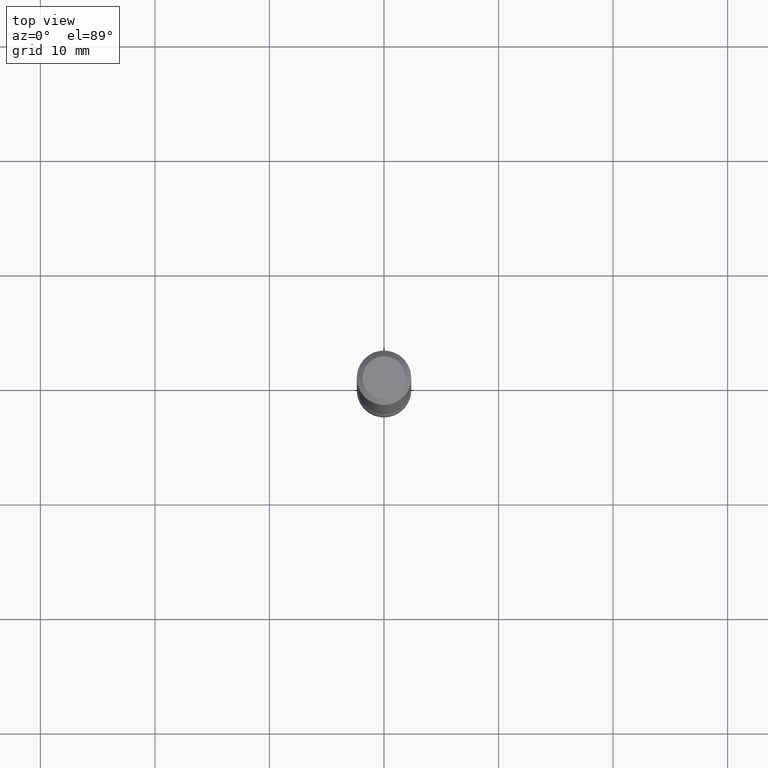
[diagram: clean part render]
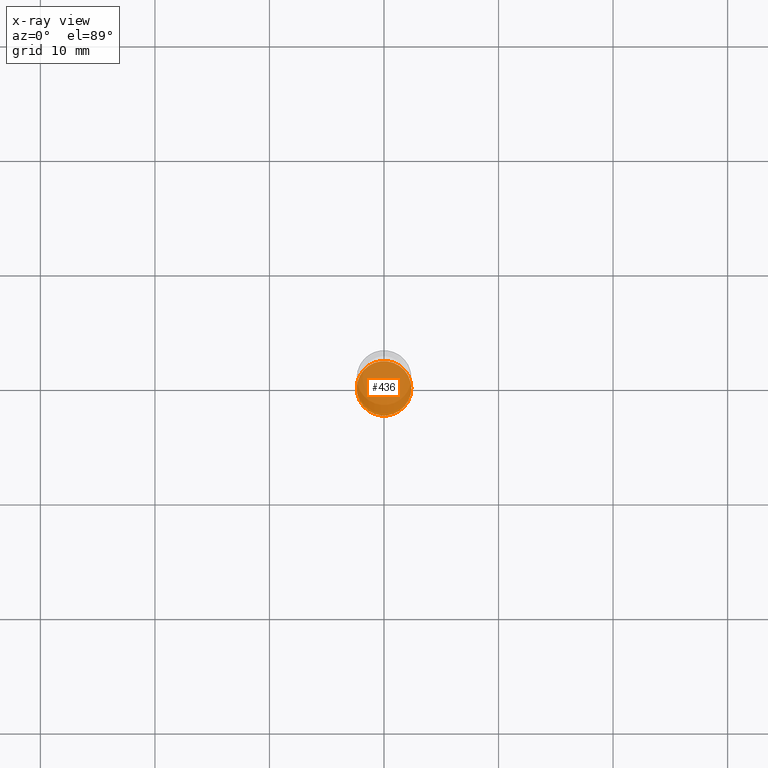
[diagram: x-ray — body ghosted, one internal face saturated and labeled with its STEP entity id]
A machine part, top view, then the same camera in x-ray: the body is ghosted and one INTERNAL B-rep face — a face not visible from any outside direction — is saturated and labeled: STEP entity #436.
In plain terms, the highlighted planar face has unit normal (0, -0, -1).
Its self-contained STEP definition (entity closure, byte-faithful):
#15 = PLANE ( 'NONE',  #124 ) ;
#16 = VERTEX_POINT ( 'NONE', #392 ) ;
#19 = EDGE_CURVE ( 'NONE', #16, #57, #172, .T. ) ;
#57 = VERTEX_POINT ( 'NONE', #299 ) ;
#101 = EDGE_CURVE ( 'NONE', #57, #16, #489, .T. ) ;
#124 = AXIS2_PLACEMENT_3D ( 'NONE', #465, #366, #420 ) ;
#152 = DIRECTION ( 'NONE',  ( 1.000000000000000000, -6.982962677686270655E-15, 0.000000000000000000 ) ) ;
#172 = CIRCLE ( 'NONE', #533, 0.09375000000000002776 ) ;
#204 = CARTESIAN_POINT ( 'NONE',  ( 5.196621213143415268E-29, -7.419397845041685201E-15, -2.125000000000000000 ) ) ;
#226 = ORIENTED_EDGE ( 'NONE', *, *, #19, .T. ) ;
#230 = ORIENTED_EDGE ( 'NONE', *, *, #101, .T. ) ;
#269 = EDGE_LOOP ( 'NONE', ( #226, #230 ) ) ;
#299 = CARTESIAN_POINT ( 'NONE',  ( -0.09375000000000002776, -7.390459374605464534E-15, -2.125000000000000000 ) ) ;
#350 = CARTESIAN_POINT ( 'NONE',  ( 5.196621213143415268E-29, -7.419397845041685201E-15, -2.125000000000000000 ) ) ;
#366 = DIRECTION ( 'NONE',  ( 2.438088387897960049E-29, -3.491481338843145188E-15, -1.000000000000000000 ) ) ;
#367 = AXIS2_PLACEMENT_3D ( 'NONE', #350, #464, #516 ) ;
#369 = DIRECTION ( 'NONE',  ( -2.445468806185136597E-29, 3.491481338843145583E-15, 1.000000000000000000 ) ) ;
#392 = CARTESIAN_POINT ( 'NONE',  ( 0.09375000000000002776, -8.074050596074771916E-15, -2.125000000000000000 ) ) ;
#420 = DIRECTION ( 'NONE',  ( -1.000000000000000000, 6.982962677686265922E-15, -4.876176775795935793E-29 ) ) ;
#435 = FACE_OUTER_BOUND ( 'NONE', #269, .T. ) ;
#436 = ADVANCED_FACE ( 'NONE', ( #435 ), #15, .F. ) ;
#464 = DIRECTION ( 'NONE',  ( -2.445468806185136597E-29, 3.491481338843145583E-15, 1.000000000000000000 ) ) ;
#465 = CARTESIAN_POINT ( 'NONE',  ( 8.726388948129611336E-30, -1.361158663068067946E-14, -2.125000000000000000 ) ) ;
#489 = CIRCLE ( 'NONE', #367, 0.09375000000000002776 ) ;
#516 = DIRECTION ( 'NONE',  ( 1.000000000000000000, -6.982962677686270655E-15, 0.000000000000000000 ) ) ;
#533 = AXIS2_PLACEMENT_3D ( 'NONE', #204, #369, #152 ) ;